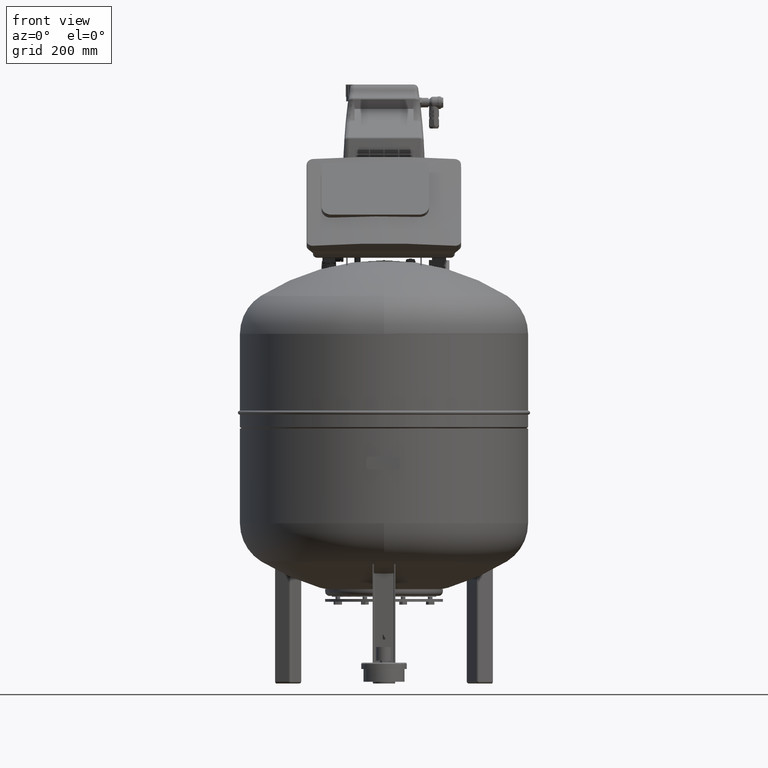
[diagram: clean part render]
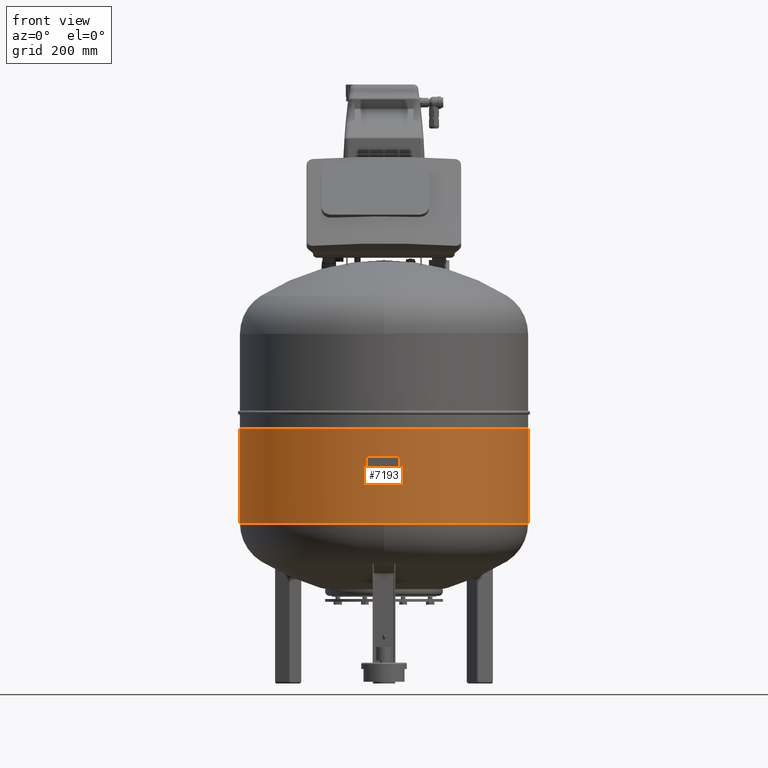
[diagram: same view with one face highlighted and labeled with its STEP entity id]
A machine part, front view. The second image highlights one B-rep face of the part: STEP entity #7193.
In plain terms, the highlighted cylindrical surface (partial cylindrical patch) has radius 317 mm, axis along (0, 0, -1).
Its self-contained STEP definition (entity closure, byte-faithful):
#7157=AXIS2_PLACEMENT_3D('Cylinder Axis2P3D',#7154,#7155,#7156) ;
#7170=AXIS2_PLACEMENT_3D('Circle Axis2P3D',#7168,#7169,$) ;
#7184=AXIS2_PLACEMENT_3D('Circle Axis2P3D',#7182,#7183,$) ;
#7154=CARTESIAN_POINT('Axis2P3D Location',(-2.108031E-014,0.,457.)) ;
#7159=CARTESIAN_POINT('Line Origine',(-317.,-7.76426070659E-014,457.)) ;
#7163=CARTESIAN_POINT('Vertex',(-317.,0.,353.)) ;
#7165=CARTESIAN_POINT('Vertex',(-317.,-7.76426070659E-014,561.)) ;
#7168=CARTESIAN_POINT('Axis2P3D Location',(-2.108031E-014,0.,353.)) ;
#7172=CARTESIAN_POINT('Vertex',(317.,3.8821303533E-014,353.)) ;
#7175=CARTESIAN_POINT('Line Origine',(317.,3.8821303533E-014,457.)) ;
#7179=CARTESIAN_POINT('Vertex',(317.,3.8821303533E-014,561.)) ;
#7182=CARTESIAN_POINT('Axis2P3D Location',(-2.108031E-014,0.,561.)) ;
#7155=DIRECTION('Axis2P3D Direction',(0.,0.,-1.)) ;
#7156=DIRECTION('Axis2P3D XDirection',(1.,1.22464679915E-016,0.)) ;
#7160=DIRECTION('Vector Direction',(0.,0.,-1.)) ;
#7169=DIRECTION('Axis2P3D Direction',(0.,0.,-1.)) ;
#7176=DIRECTION('Vector Direction',(0.,0.,-1.)) ;
#7183=DIRECTION('Axis2P3D Direction',(0.,0.,-1.)) ;
#7161=VECTOR('Line Direction',#7160,1.) ;
#7177=VECTOR('Line Direction',#7176,1.) ;
#7188=ORIENTED_EDGE('',*,*,#7167,.F.) ;
#7189=ORIENTED_EDGE('',*,*,#7174,.F.) ;
#7190=ORIENTED_EDGE('',*,*,#7181,.T.) ;
#7191=ORIENTED_EDGE('',*,*,#7186,.T.) ;
#7193=ADVANCED_FACE('2AD',(#7192),#7158,.T.) ;
#7171=CIRCLE('generated circle',#7170,317.) ;
#7185=CIRCLE('generated circle',#7184,317.) ;
#7158=CYLINDRICAL_SURFACE('generated cylinder',#7157,317.) ;
#7167=EDGE_CURVE('',#7164,#7166,#7162,.F.) ;
#7174=EDGE_CURVE('',#7173,#7164,#7171,.T.) ;
#7181=EDGE_CURVE('',#7173,#7180,#7178,.F.) ;
#7186=EDGE_CURVE('',#7180,#7166,#7185,.T.) ;
#7187=EDGE_LOOP('',(#7188,#7189,#7190,#7191)) ;
#7192=FACE_OUTER_BOUND('',#7187,.T.) ;
#7162=LINE('Line',#7159,#7161) ;
#7178=LINE('Line',#7175,#7177) ;
#7164=VERTEX_POINT('',#7163) ;
#7166=VERTEX_POINT('',#7165) ;
#7173=VERTEX_POINT('',#7172) ;
#7180=VERTEX_POINT('',#7179) ;